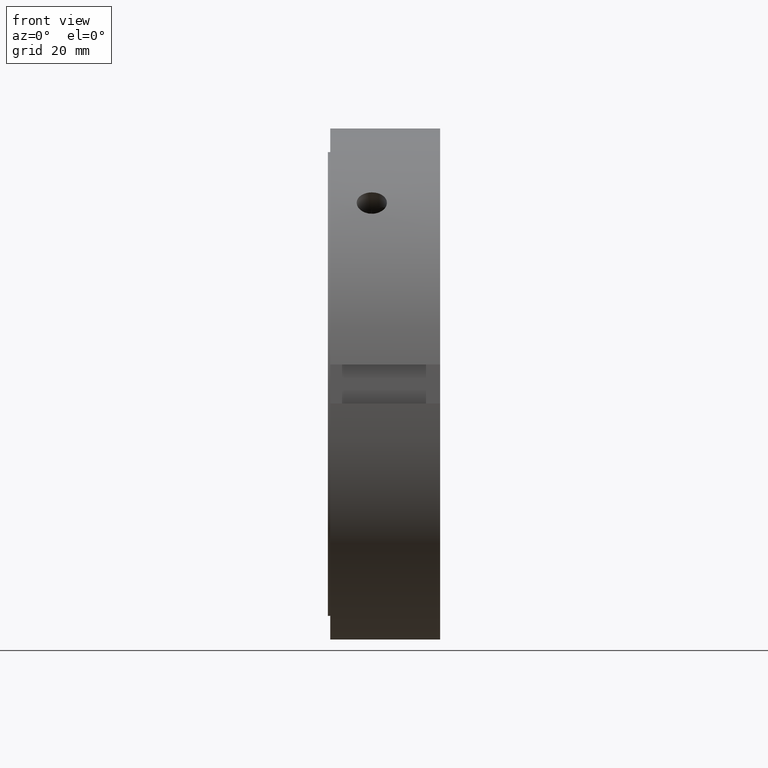
[diagram: clean part render]
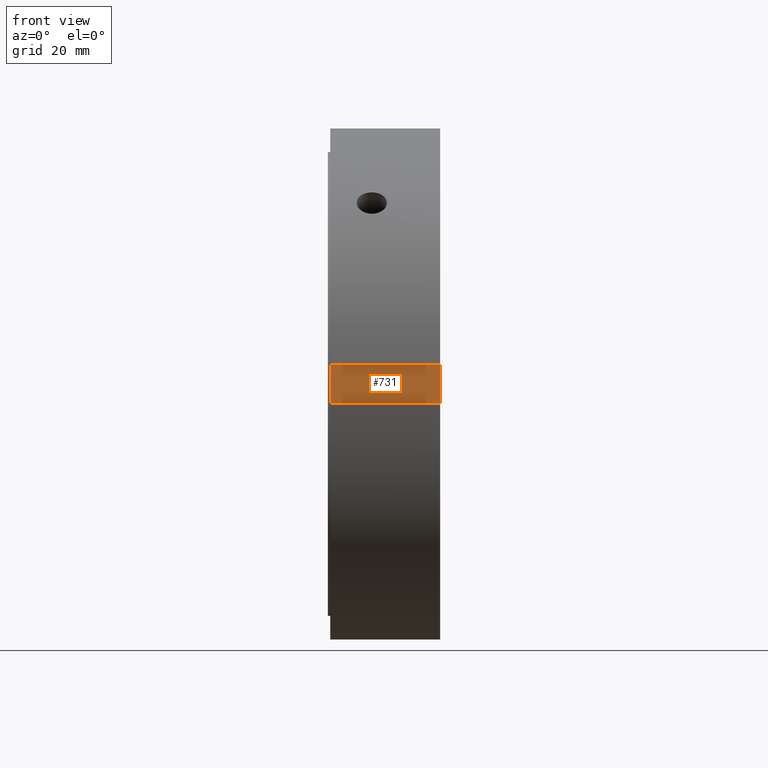
[diagram: same view with one face highlighted and labeled with its STEP entity id]
A machine part, front view. The second image highlights one B-rep face of the part: STEP entity #731.
In plain terms, the highlighted planar face has unit normal (0, 1, 0).
Its self-contained STEP definition (entity closure, byte-faithful):
#635=CARTESIAN_POINT('',(0.499999999999989,-48.999999999999993,4.000000000000004));
#636=VERTEX_POINT('',#635);
#645=CARTESIAN_POINT('',(22.999999999999989,-48.999999999999993,4.000000000000004));
#646=VERTEX_POINT('',#645);
#647=CARTESIAN_POINT('',(22.999999999999989,-48.999999999999993,4.000000000000004));
#648=DIRECTION('',(-1.0,0.0,0.0));
#649=VECTOR('',#648,22.5);
#650=LINE('',#647,#649);
#651=EDGE_CURVE('',#646,#636,#650,.T.);
#677=CARTESIAN_POINT('',(0.499999999999989,-48.999999999999993,-3.999999999999993));
#678=VERTEX_POINT('',#677);
#693=CARTESIAN_POINT('',(22.999999999999989,-48.999999999999993,-3.999999999999993));
#694=VERTEX_POINT('',#693);
#701=CARTESIAN_POINT('',(22.999999999999989,-48.999999999999993,-3.999999999999993));
#702=DIRECTION('',(-1.0,0.0,0.0));
#703=VECTOR('',#702,22.5);
#704=LINE('',#701,#703);
#705=EDGE_CURVE('',#694,#678,#704,.T.);
#710=CARTESIAN_POINT('',(22.999999999999989,-48.999999999999993,-3.999999999999993));
#711=DIRECTION('',(0.0,1.0,0.0));
#712=DIRECTION('',(0.0,0.0,1.0));
#713=AXIS2_PLACEMENT_3D('',#710,#711,#712);
#714=PLANE('',#713);
#715=CARTESIAN_POINT('',(0.499999999999987,-48.999999999999986,-3.999999999999993));
#716=DIRECTION('',(0.0,0.0,1.0));
#717=VECTOR('',#716,7.999999999999996);
#718=LINE('',#715,#717);
#719=EDGE_CURVE('',#678,#636,#718,.T.);
#720=ORIENTED_EDGE('',*,*,#719,.F.);
#721=ORIENTED_EDGE('',*,*,#705,.F.);
#722=CARTESIAN_POINT('',(22.999999999999989,-48.999999999999986,4.000000000000004));
#723=DIRECTION('',(0.0,0.0,-1.0));
#724=VECTOR('',#723,7.999999999999997);
#725=LINE('',#722,#724);
#726=EDGE_CURVE('',#646,#694,#725,.T.);
#727=ORIENTED_EDGE('',*,*,#726,.F.);
#728=ORIENTED_EDGE('',*,*,#651,.T.);
#729=EDGE_LOOP('',(#720,#721,#727,#728));
#730=FACE_OUTER_BOUND('',#729,.T.);
#731=ADVANCED_FACE('',(#730),#714,.F.);